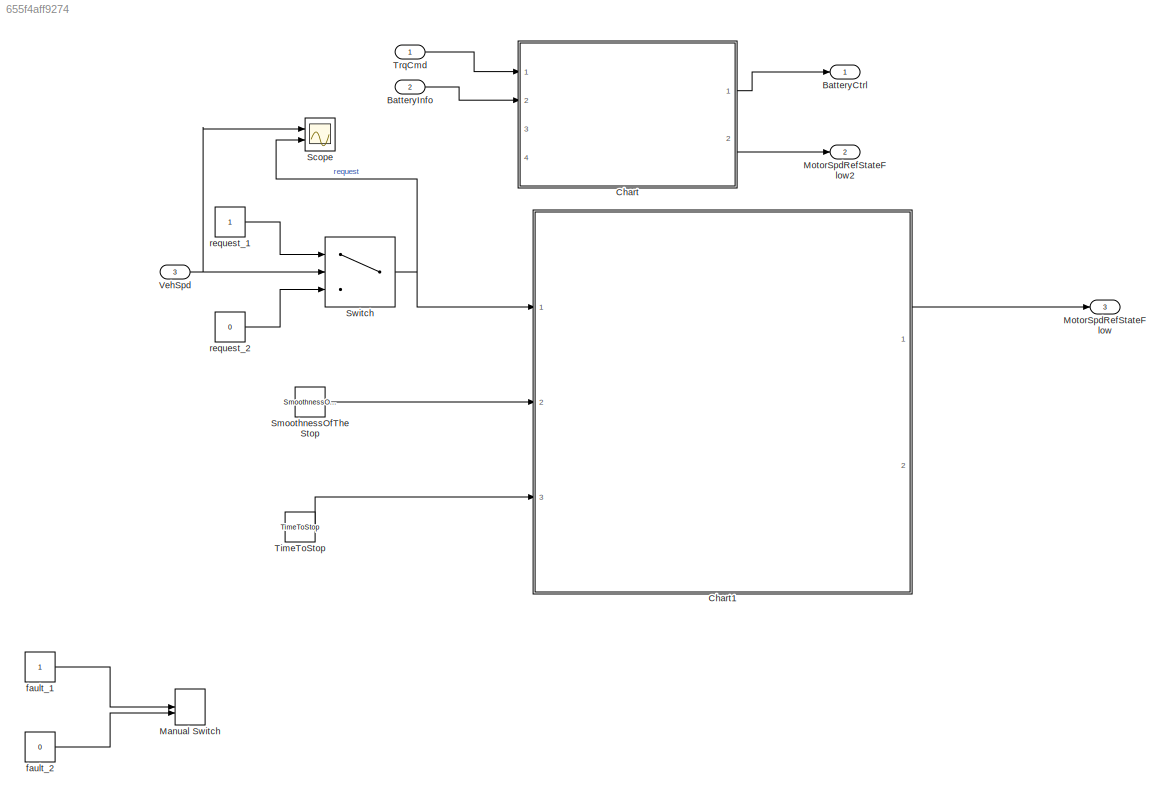
MODEL slx_655f4aff9274
KIND model
CONFIG AbsTol = auto
CONFIG EnableMultiTasking = off
CONFIG FixedStep = ContIntTime
CONFIG MaxStep = auto
CONFIG MinStep = auto
CONFIG RelTol = 1e-3
CONFIG SampleTimeConstraint = Unconstrained
CONFIG SolverName = FixedStepDiscrete
CONFIG StartTime = 0.0
CONFIG StopTime = 10.0
BLOCK [Outport] BatteryCtrl
BLOCK [Inport] BatteryInfo
  OutDataTypeStr = Bus: BatteryInfo
  Port = 2
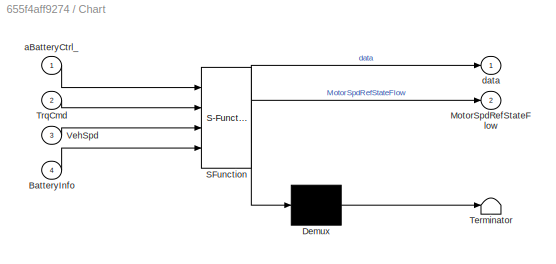
BLOCK [SubSystem] Chart
  Commented = on
  ErrorFcn = Stateflow.Translate.translate
  PermitHierarchicalResolution = ExplicitOnly
  Ports = [4, 2]
  RequestExecContextInheritance = off
  SFBlockType = Chart
  TreatAsAtomicUnit = on
BLOCK [Demux] Chart/ Demux 
  Outputs = 1
  Ports = [1, 1]
BLOCK [S-Function] Chart/ SFunction 
  EnableBusSupport = on
  FunctionName = sf_sfun
  PortCounts = [4 3]
  Ports = [4, 3]
  SFcnIsStateOwnerBlock = off
  SFunctionDeploymentMode = off
  Tag = Stateflow S-Function 3
BLOCK [Terminator] Chart/ Terminator 
BLOCK [Inport] Chart/BatteryInfo
  Port = 4
BLOCK [Outport] Chart/MotorSpdRefStateFlow
  Port = 2
BLOCK [Inport] Chart/TrqCmd
  Port = 2
BLOCK [Inport] Chart/VehSpd
  Port = 3
BLOCK [Inport] Chart/aBatteryCtrl_
BLOCK [Outport] Chart/data
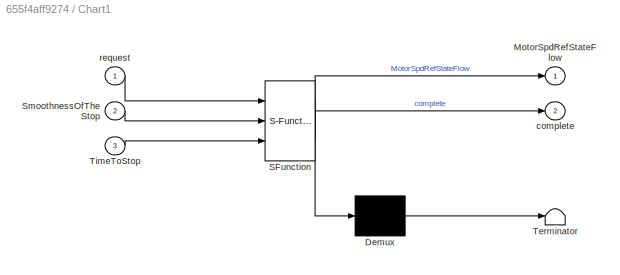
BLOCK [SubSystem] Chart1
  ErrorFcn = Stateflow.Translate.translate
  PermitHierarchicalResolution = ExplicitOnly
  Ports = [3, 2]
  RequestExecContextInheritance = off
  SFBlockType = Chart
  TreatAsAtomicUnit = on
BLOCK [Demux] Chart1/ Demux 
  Outputs = 1
  Ports = [1, 1]
BLOCK [S-Function] Chart1/ SFunction 
  EnableBusSupport = on
  FunctionName = sf_sfun
  PortCounts = [3 3]
  Ports = [3, 3]
  SFcnIsStateOwnerBlock = off
  SFunctionDeploymentMode = off
  Tag = Stateflow S-Function 1
BLOCK [Terminator] Chart1/ Terminator 
BLOCK [Outport] Chart1/MotorSpdRefStateFlow
BLOCK [Inport] Chart1/SmoothnessOfTheStop
  Port = 2
BLOCK [Inport] Chart1/TimeToStop
  Port = 3
BLOCK [Outport] Chart1/complete
  Port = 2
BLOCK [Inport] Chart1/request
BLOCK [ManualSwitch] Manual Switch
  Commented = on
  CurrentSetting = 0
BLOCK [Outport] MotorSpdRefStateFlow
  OutDataTypeStr = single
  Port = 3
BLOCK [Outport] MotorSpdRefStateFlow2
  OutDataTypeStr = single
  Port = 2
BLOCK [Scope] Scope
  Floating = off
  NumInputPorts = 2
  Ports = [2]
  ScopeSpecificationString = Simulink.scopes.TimeScopeBlockCfg('CurrentConfiguration', extmgr.ConfigurationSet(extmgr.Configuration('Core','General UI',true),extmgr.Configuration('Core','Source UI',true),extmgr.Configuration('Sources','WiredSimulink',true),extmgr.Configuration('Visuals','Time Domain',true,'SerializedDisplays',{struct('MinYLimReal','-11.40623','MaxYLimReal','102.65603','YLabelReal','','MinYLimMag','0.00000','M...<+2041ch>
BLOCK [Constant] SmoothnessOfTheStop
  OutDataTypeStr = single
  Value = SmoothnessOfTheStop
BLOCK [Switch] Switch
  Criteria = u2 > Threshold
  InputSameDT = off
  OutDataTypeStr = single
  SaturateOnIntegerOverflow = off
BLOCK [Constant] TimeToStop
  OutDataTypeStr = single
  Value = TimeToStop
BLOCK [Inport] TrqCmd
BLOCK [Inport] VehSpd
  OutDataTypeStr = single
  Port = 3
BLOCK [Constant] fault_1
  Commented = on
  OutDataTypeStr = single
BLOCK [Constant] fault_2
  Commented = on
  OutDataTypeStr = single
  Value = 0
BLOCK [Constant] request_1
  OutDataTypeStr = single
BLOCK [Constant] request_2
  OutDataTypeStr = single
  Value = 0
LINE BatteryInfo:1 -> Chart:2
LINE Chart1:1 -> MotorSpdRefStateFlow:1
LINE Chart:1 -> BatteryCtrl:1
LINE Chart:2 -> MotorSpdRefStateFlow2:1
LINE SmoothnessOfTheStop:1 -> Chart1:2
NET Switch:1 -> Chart1:1, Scope:2
LINE TimeToStop:1 -> Chart1:3
LINE TrqCmd:1 -> Chart:1
NET VehSpd:1 -> Scope:1, Switch:2
LINE fault_1:1 -> Manual Switch:1
LINE fault_2:1 -> Manual Switch:2
LINE request_1:1 -> Switch:1
LINE request_2:1 -> Switch:3
note: NET lines group one-source signal fan-out (src -> all destinations, sorted); 1:1 wires keep LINE
CHART Chart1 states=10 transitions=14
  STATE_LABEL 'DriveSmooth\nentry:\ncount=0;'
  STATE_LABEL 'a\nentry:\nMotorSpdRefStateFlow=MotorSpdRefStateFlow+k;'
  STATE_LABEL 'b1\nentry:'
  STATE_LABEL '{count=count+1}'
  STATE_LABEL 'after(TimeToStop/SmoothnessOfTheStop,sec)'
  STATE_LABEL 'a\nentry:\nMotorSpdRefStateFlow=MotorSpdRefStateFlow+k;'
  STATE_LABEL 'b1\nentry:'
  STATE_LABEL 'Charge\nentry:\nduring:\nSOC = SOC + 2e-2;'
  STATE_LABEL 'Off\nentry:\ncount=0;\nfault=0;\nk=1/SmoothnessOfTheStop;\nMotorSpdRefStateFlow=0;\n'
  STATE_LABEL 'Drive\nentry:\nMotorSpdRefStateFlow=1;\nduring:\nSOC = SOC - 1e-2;\n'
  STATE_LABEL 'Fault\nentry:\n'
  STATE_LABEL 'a\nentry:\nMotorSpdRefStateFlow=MotorSpdRefStateFlow-k;'
  STATE_LABEL 'b\nentry:'
  STATE_LABEL '{count=count+1}'
  STATE_LABEL 'after(TimeToStop/SmoothnessOfTheStop,sec)'
  STATE_LABEL 'a\nentry:\nMotorSpdRefStateFlow=MotorSpdRefStateFlow-k;'
  STATE_LABEL 'b\nentry:'
  STATE_LABEL 'TaskComplete\nentry:\ncomplete=1;'
CHART Chart states=9 transitions=17
  STATE_LABEL 'Off'
  STATE_LABEL 'Drive\nentry:\n'
  STATE_LABEL 'Fault\nentry:\nk=k+0.1;\n'
  STATE_LABEL 'a\nentry:\nMotorSpdRefStateFlow=MotorSpdRefStateFlow-k;\ni=i+k\nexit:\nk==i'
  STATE_LABEL 'after(1,sec)'
  STATE_LABEL 'a\nentry:\nMotorSpdRefStateFlow=MotorSpdRefStateFlow-k;\ni=i+k\nexit:\nk==i'
  STATE_LABEL 'Charge1\nentry:\ndriveMode = 0;\nduring:\nSOC = SOC + 2e-5;'
  STATE_LABEL 'Off1\nentry:\ndriveMode = 0;\n'
  STATE_LABEL 'Vacuum\nentry:\ndriveMode = 2;\nduring:\nSOC = SOC - 1e-5;'
  STATE_LABEL 'SeekDock\nentry:\ndriveMode = 1;\nduring:\nSOC = SOC - 1e-5;'
  STATE_LABEL 'Charge\nentry:\ndriveMode = 0;\nduring:\nSOC = SOC + 2e-5;'
CHART  states=0 transitions=0
CHART  states=0 transitions=0
